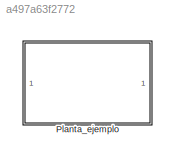
MODEL slx_a497a63f2772
KIND model
CONFIG AbsTol = auto
CONFIG EnableMultiTasking = off
CONFIG FixedStep = auto
CONFIG MaxStep = auto
CONFIG MinStep = auto
CONFIG RelTol = 1e-3
CONFIG SampleTimeConstraint = Unconstrained
CONFIG SolverName = VariableStepAuto
CONFIG StartTime = 0.0
CONFIG StopTime = 10.0
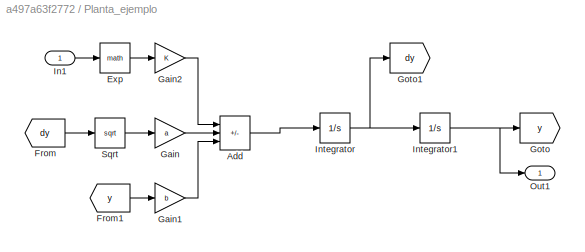
BLOCK [SubSystem] Planta_ejemplo
BLOCK [Sum] Planta_ejemplo/Add
  IconShape = rectangular
  Inputs = +-+
BLOCK [Math] Planta_ejemplo/Exp
BLOCK [From] Planta_ejemplo/From
  GotoTag = dy
BLOCK [From] Planta_ejemplo/From1
  GotoTag = y
BLOCK [Gain] Planta_ejemplo/Gain
  Gain = a
BLOCK [Gain] Planta_ejemplo/Gain1
  Gain = b
BLOCK [Gain] Planta_ejemplo/Gain2
  Gain = K
BLOCK [Goto] Planta_ejemplo/Goto
  GotoTag = y
BLOCK [Goto] Planta_ejemplo/Goto1
  GotoTag = dy
BLOCK [Inport] Planta_ejemplo/In1
  IconDisplay = Signal name
BLOCK [Integrator] Planta_ejemplo/Integrator
BLOCK [Integrator] Planta_ejemplo/Integrator1
BLOCK [Outport] Planta_ejemplo/Out1
BLOCK [Sqrt] Planta_ejemplo/Sqrt
LINE Planta_ejemplo/Add:1 -> Planta_ejemplo/Integrator:1
LINE Planta_ejemplo/Exp:1 -> Planta_ejemplo/Gain2:1
LINE Planta_ejemplo/From1:1 -> Planta_ejemplo/Gain1:1
LINE Planta_ejemplo/From:1 -> Planta_ejemplo/Sqrt:1
LINE Planta_ejemplo/Gain1:1 -> Planta_ejemplo/Add:3
LINE Planta_ejemplo/Gain2:1 -> Planta_ejemplo/Add:1
LINE Planta_ejemplo/Gain:1 -> Planta_ejemplo/Add:2
LINE Planta_ejemplo/In1:1 -> Planta_ejemplo/Exp:1
NET Planta_ejemplo/Integrator1:1 -> Planta_ejemplo/Goto:1, Planta_ejemplo/Out1:1
NET Planta_ejemplo/Integrator:1 -> Planta_ejemplo/Goto1:1, Planta_ejemplo/Integrator1:1
LINE Planta_ejemplo/Sqrt:1 -> Planta_ejemplo/Gain:1
note: NET lines group one-source signal fan-out (src -> all destinations, sorted); 1:1 wires keep LINE
